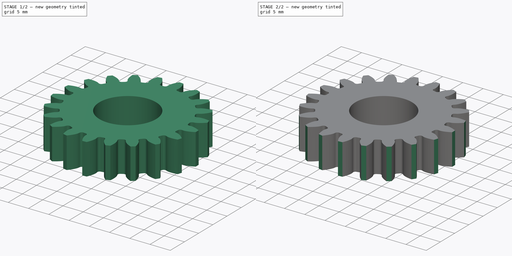
[diagram: build sequence overview — one tinted view per stage of 2, left to right]
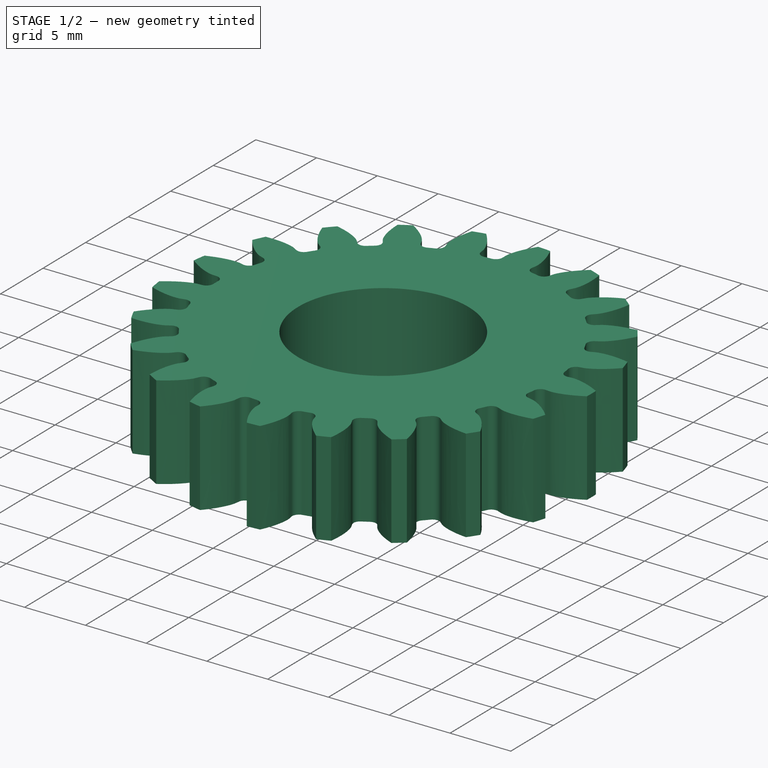
[diagram: stage 1 of 2 — iso view after this stage's code; geometry added in this stage tinted green]
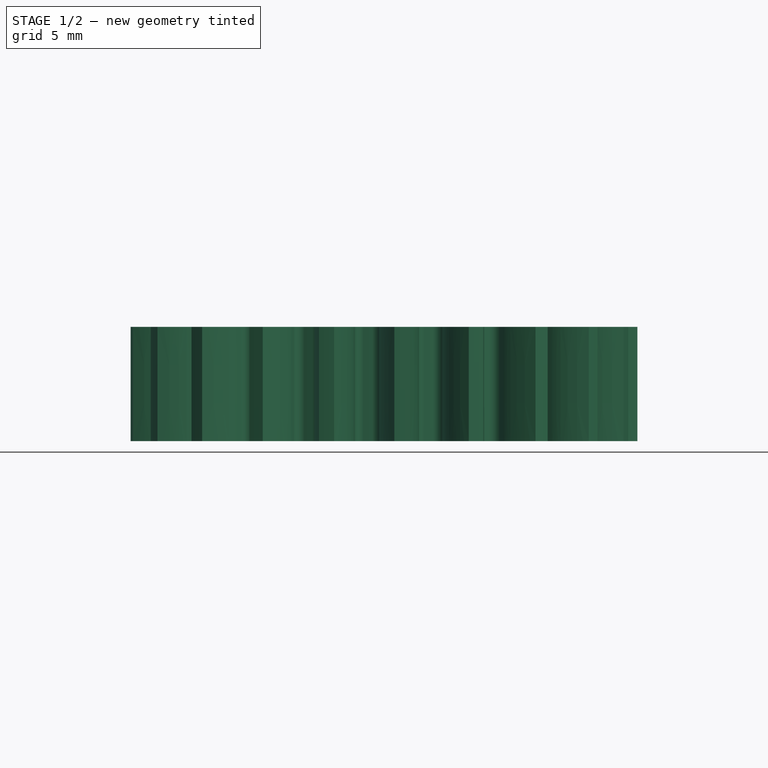
[diagram: stage 1 of 2 — front view after this stage's code; geometry added in this stage tinted green]
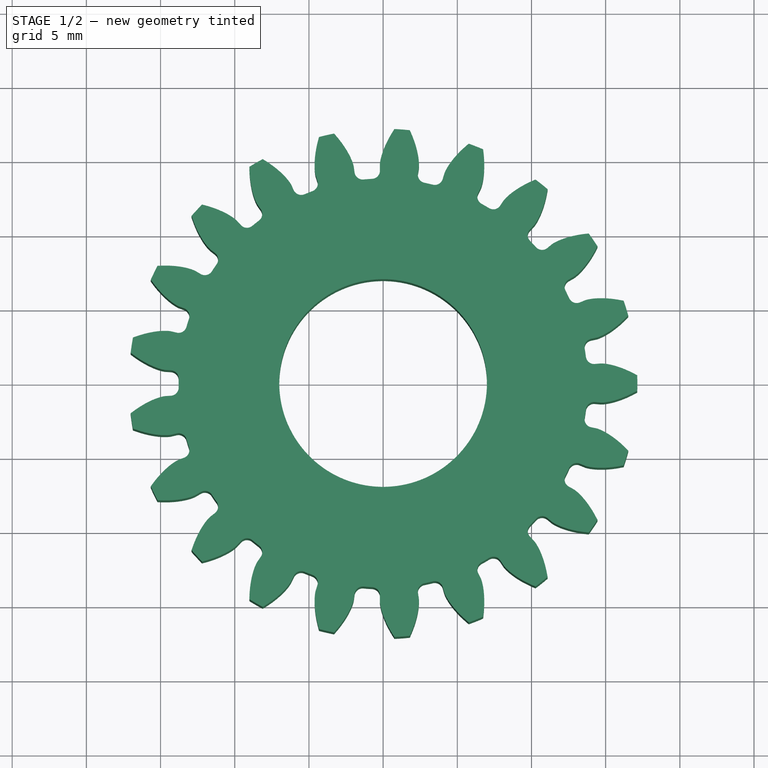
[diagram: stage 1 of 2 — top view after this stage's code; geometry added in this stage tinted green]
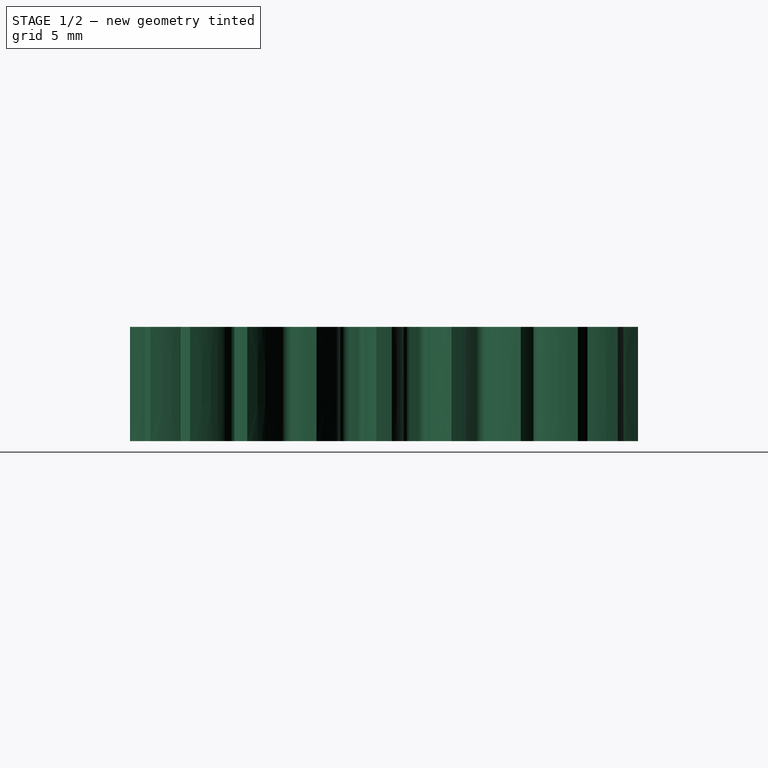
[diagram: stage 1 of 2 — right view after this stage's code; geometry added in this stage tinted green]
FCSTD DOCUMENT  (FreeCAD 0.21R31739 (Git))
Label: SpurGear
License: All rights reserved
LicenseURL: http://en.wikipedia.org/wiki/All_rights_reserved
objects: Part::Part2DObjectPython×2, PartDesign::Pad×2, Sketcher::SketchObject×2, PartDesign::Pocket×2, PartDesign::Body×2, App::Part×2, Spreadsheet::Sheet×1, TechDraw::DrawSVGTemplate×1, TechDraw::DrawViewPart×1, TechDraw::DrawPage×1
note: 14 computed .brp shape members not serialized (recipe doc carries the construction recipe); baked Part::Feature solids carry a one-line shape summary decoded from their .brp

FEATURE [Part::Part2DObjectPython] InvoluteGear001  # Draft 2D object (typed FeaturePython)
  AddendumCoefficient = 1
  DedendumCoefficient = 1.25
  ExternalGear = true
  HighPrecision = true
  Modules = 1.49
  NumberOfTeeth = 21
  PressureAngle = 20
  RootFilletCoefficient = 0.375
  expr: Modules = Spreadsheet.GearModule
  expr: NumberOfTeeth = Spreadsheet.ToothCount
FEATURE [PartDesign::Pad] Pad001
  Direction = (0,0,1)
  Length = 7.7
  Length2 = 10
  Profile = -> InvoluteGear001
  ReferenceAxis = -> InvoluteGear001 [N_Axis]
  Type = 0
FEATURE [PartDesign::Body] Body002  label="GearBodyKey"
  Group = -> [InvoluteGear002,Pad002,Sketch003,Pocket003]
  Origin = -> Origin003
  Tip = -> Pocket003
FEATURE [App::Part] Part001  label="SpurGearKey"
  Group = -> [Body002]
  Origin = -> Origin002
  Placement = pos=(36.5,0,0) rot=(0,0,1;0rad)
  expr: .Placement.Base.x = Spreadsheet.GearDiameter + 2
FEATURE [Sketcher::SketchObject] Sketch002
  FullyConstrained = false
  expr: Constraints[0] = Spreadsheet.ShaftDiameter
  sketch-geometry (1):
    g0: Circle CenterX=0 CenterY=0 CenterZ=0 NormalX=0 NormalY=0 NormalZ=1 AngleXU=0 Radius=7
  constraints (1):
    c: Diameter(g0) = 14
FEATURE [PartDesign::Pocket] Pocket002
  BaseFeature = -> Pad001
  Direction = (0,0,-1)
  Length = 7.6
  Length2 = 8
  Profile = -> Sketch002
  ReferenceAxis = -> Sketch002 [N_Axis]
  Reversed = true
  Type = 1
  expr: Length = Spreadsheet.GearThicknes
FEATURE [PartDesign::Body] Body001  label="GearBody"
  Group = -> [InvoluteGear001,Pad001,Sketch002,Pocket002]
  Origin = -> Origin001
  Tip = -> Pocket002
FEATURE [App::Part] Part  label="SpurGear"
  Group = -> [Body001]
  Origin = -> Origin
FEATURE [TechDraw::DrawSVGTemplate] Template
  EditableTexts = Designed_by_Name=Designed by Name; Drawing_number=Drawing number; FC-Date=Date; FC-SC=Scale; FC-SH=Sheet; FC-Title=Title; Subtitle=Subtitle; Weight=Weight
  Height = 210
  Orientation = 1
  Template = C:/Program Files/FreeCAD 0.21/data/Mod/TechDraw/Templates/A4_LandscapeTD.svg
  Width = 297
FEATURE [TechDraw::DrawViewPart] View  label="TV"
  CoarseView = false
  Direction = (0,0,1)
  Focus = 100
  HardHidden = false
  IsoCount = 0
  IsoHidden = false
  IsoVisible = false
  LockPosition = false
  Perspective = false
  Rotation = 0
  ScaleType = 0
  SeamHidden = false
  SeamVisible = true
  SmoothHidden = false
  SmoothVisible = true
  Source = -> [Part]
  X = 109.168
  XDirection = (1,0,0)
  Y = 116.568
FEATURE [TechDraw::DrawPage] Page  label="Drawing"
  KeepUpdated = true
  NextBalloonIndex = 1
  ProjectionType = 0
  Template = -> Template
  Views = -> [View]
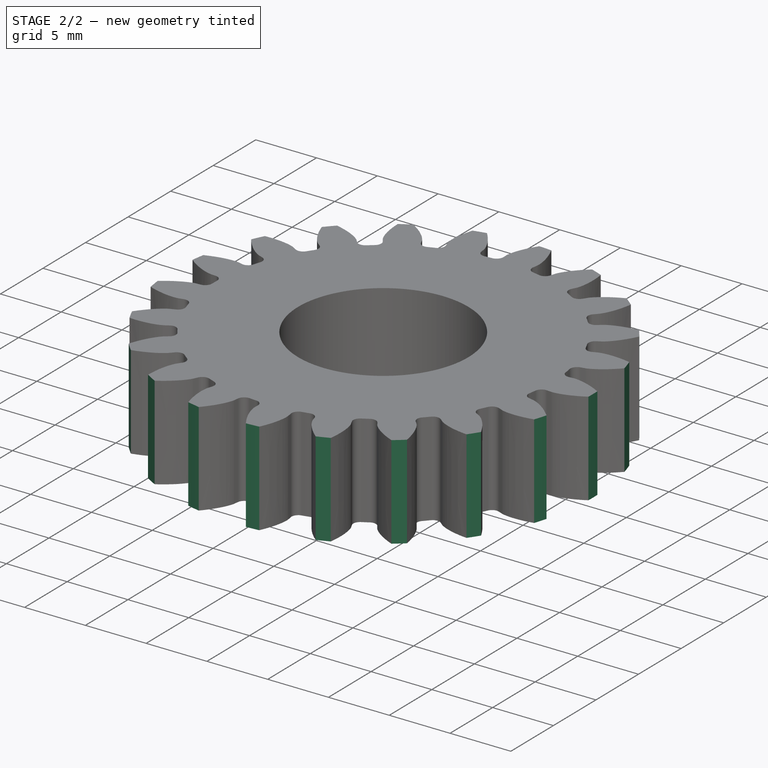
[diagram: stage 2 of 2 — iso view after this stage's code; geometry added in this stage tinted green]
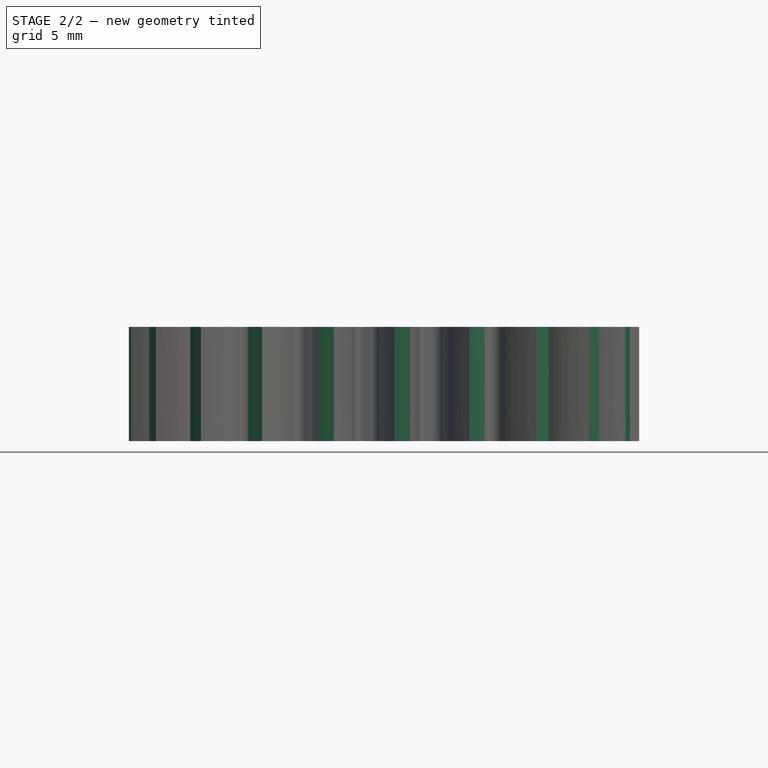
[diagram: stage 2 of 2 — front view after this stage's code; geometry added in this stage tinted green]
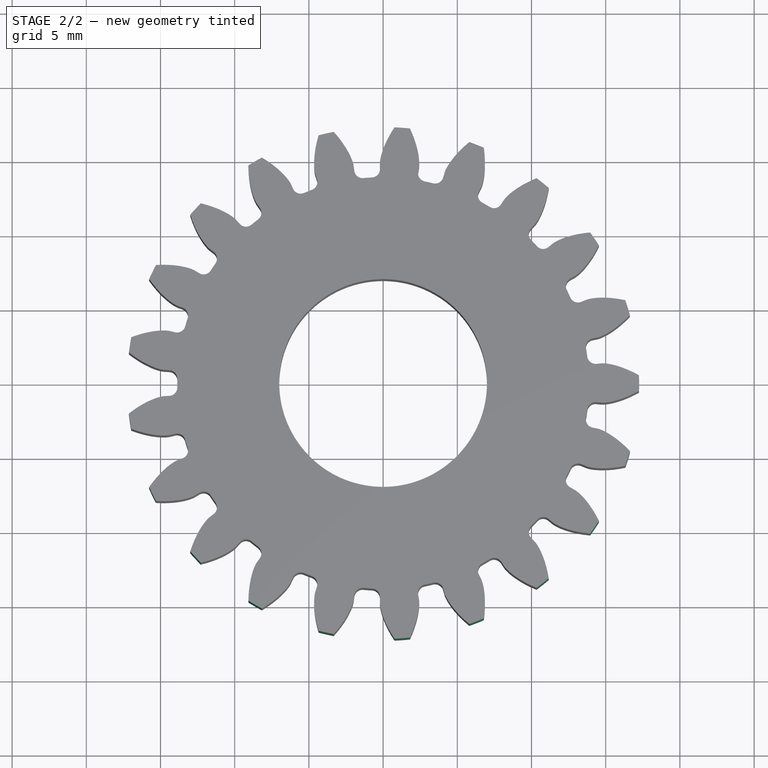
[diagram: stage 2 of 2 — top view after this stage's code; geometry added in this stage tinted green]
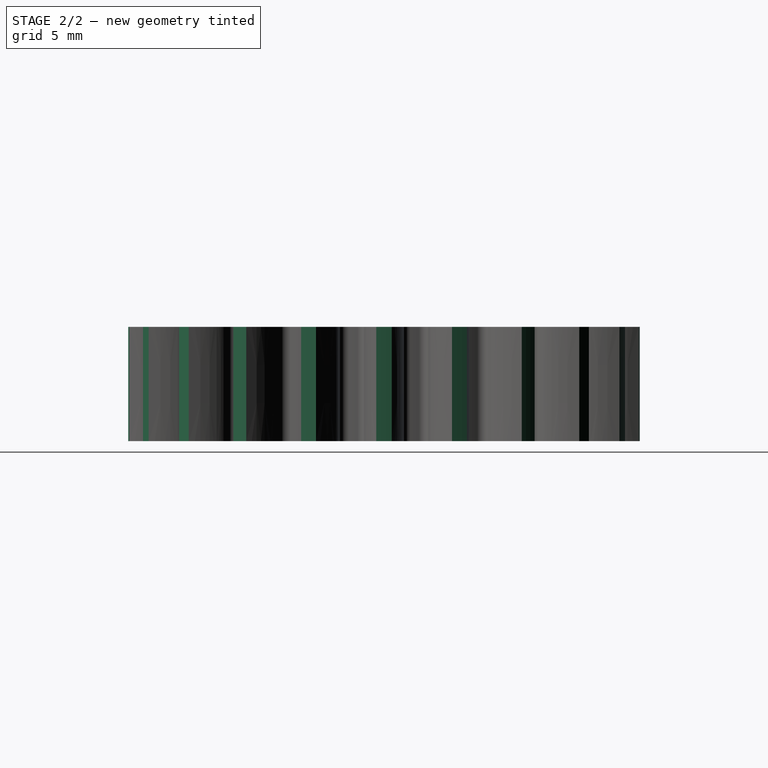
[diagram: stage 2 of 2 — right view after this stage's code; geometry added in this stage tinted green]
FEATURE [Spreadsheet::Sheet] Spreadsheet
  Part = 1
  cells = A2=Type; B2=ToothCount; C2=Module; D2=PressureAngle; E2=GearThickness; F2=ShaftDiameter; G2=KeyWidth; H2=KeyHeight; I2=PrintCorrection3D; A3==hiddenref(.Part.String); B3(ToothCount)==.B5; C3(Module)==.C5; D3(PressureAngle)==.D5; E3(GearThicknes)==.E5; F3(ShaftDiameter)==.F5; G3(KeyWidth)==.G5; H3(KeyHeight)==.H5; I3(PrintCorrection3D)==.I5; A4=BF290Spindle8S; B4=84; C4=1.5; D4=20; E4=8; F4=48; G4=8; H4=4; I4==-0.01; A5=BF290Servo; B5=21; C5=1.5; D5=20; E5=7.6; F5=14; G5=5; H5=4; I5==-0.01; A10=Calculated Fields; I10=Format; A11=Gear Diameter mm; B11(GearDiameter)==Module * (ToothCount + 2); I11="=-0.01"; A12=Gear Diameter Inch; B12(GearDiameterInch)==GearDiameter / 25.4; I12=or; A13=GearModule; B13(GearModule)==Module + PrintCorrection3D; I13="=0.01"
  expr: .Part.Enum = cells[<<A4:|>>]
  expr: .cells.Bind.B3.N3 = tuple(.cells; <<B>> + str(hiddenref(Part) + 4); <<N>> + str(hiddenref(Part) + 4))
FEATURE [Part::Part2DObjectPython] InvoluteGear002  # Draft 2D object (typed FeaturePython)
  AddendumCoefficient = 1
  DedendumCoefficient = 1.25
  ExternalGear = true
  HighPrecision = true
  Modules = 1.5
  NumberOfTeeth = 21
  PressureAngle = 20
  RootFilletCoefficient = 0.375
  expr: NumberOfTeeth = Spreadsheet.ToothCount
FEATURE [PartDesign::Pad] Pad002
  Direction = (0,0,1)
  Length = 7.7
  Length2 = 10
  Profile = -> InvoluteGear002
  ReferenceAxis = -> InvoluteGear002 [N_Axis]
  Type = 0
FEATURE [Sketcher::SketchObject] Sketch003
  FullyConstrained = true
  expr: Constraints[1] = Spreadsheet.ShaftDiameter
  expr: Constraints[6] = Spreadsheet.KeyWidth
  expr: Constraints[8] = Spreadsheet.ShaftDiameter / 2 + Spreadsheet.KeyHeight / 2 + 0.4 / 2
  sketch-geometry (4):
    g0: ArcOfCircle CenterX=0 CenterY=0 CenterZ=0 NormalX=0 NormalY=0 NormalZ=1 AngleXU=0 Radius=7 StartAngle=1.936 EndAngle=7.48877
    g1: LineSegment StartX=-2.5 StartY=9.2 StartZ=0 EndX=2.5 EndY=9.2 EndZ=0
    g2: LineSegment StartX=2.5 StartY=9.2 StartZ=0 EndX=2.5 EndY=6.53835 EndZ=0
    g3: LineSegment StartX=-2.5 StartY=6.53835 StartZ=0 EndX=-2.5 EndY=9.2 EndZ=0
  constraints (11):
    c: Coincident(g0,g-1)
    c: Diameter(g0) = 14
    c: Coincident(g1,g2)
    c: Coincident(g3,g1)
    c: Vertical(g2)
    c: Vertical(g3)
    c: DistanceX(g1,g1) = 5
    c: Symmetric(g1,g1,g-2)
    c: DistanceY(g0,g1) = 9.2
    c: Coincident(g0,g2)
    c: Coincident(g0,g3)
FEATURE [PartDesign::Pocket] Pocket003
  BaseFeature = -> Pad002
  Direction = (0,0,-1)
  Length = 7.6
  Length2 = 8
  Profile = -> Sketch003
  ReferenceAxis = -> Sketch003 [N_Axis]
  Reversed = true
  Type = 1
  expr: Length = Spreadsheet.GearThicknes
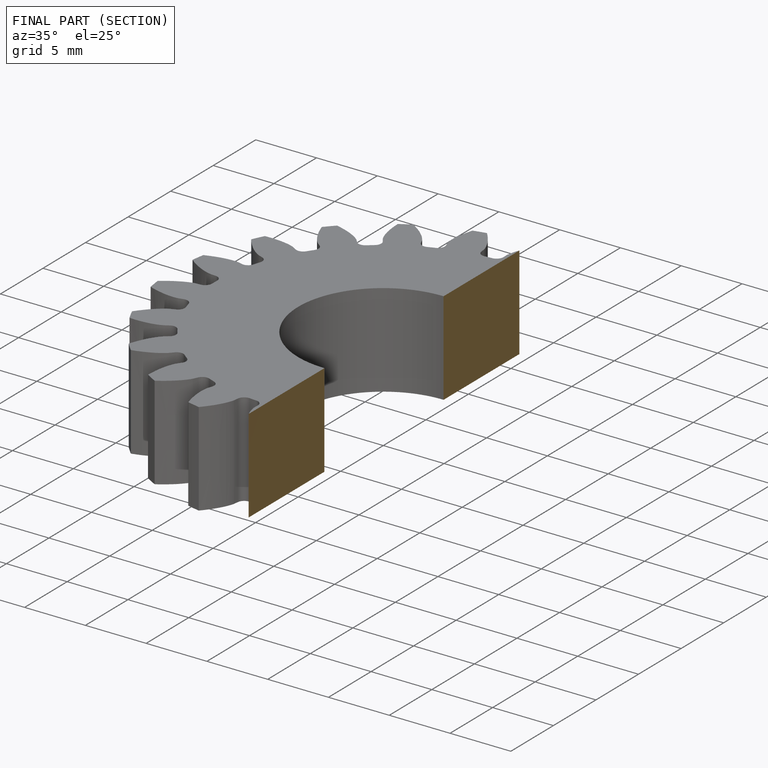
[diagram: finished part — half-section view (interior)]
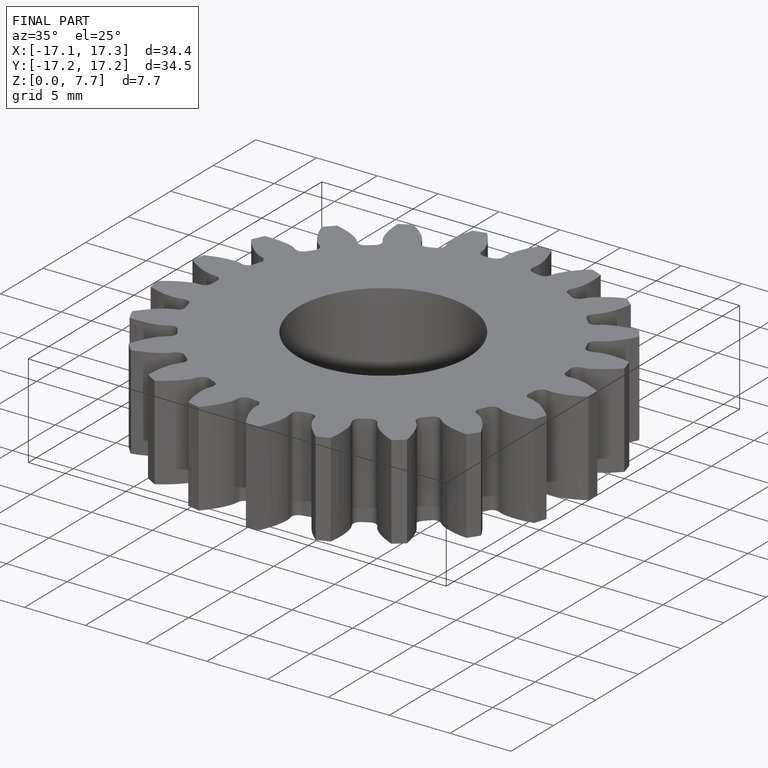
[diagram: finished part — iso view with bounding-box wireframe]
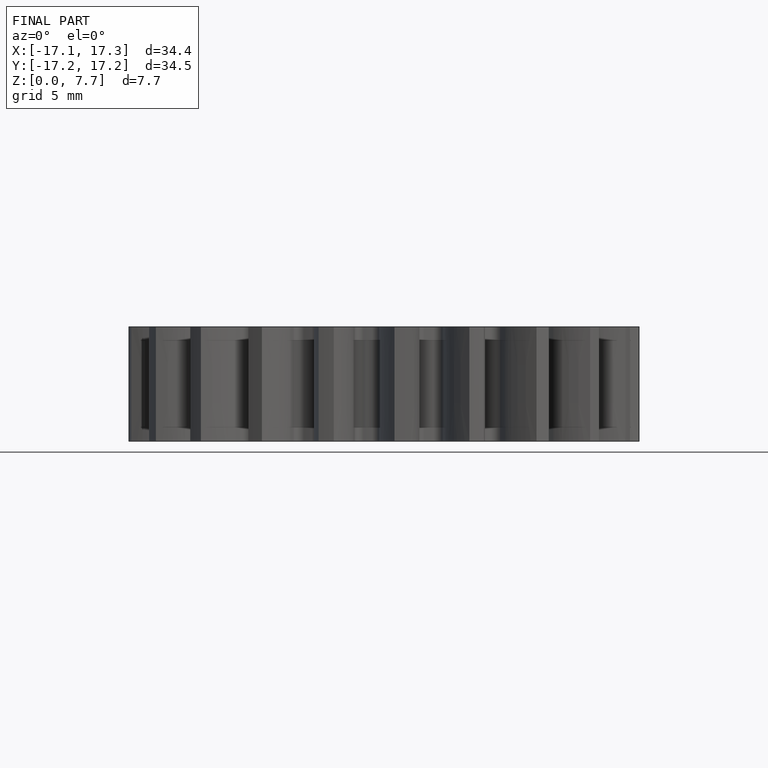
[diagram: finished part — front view with bounding-box wireframe]
